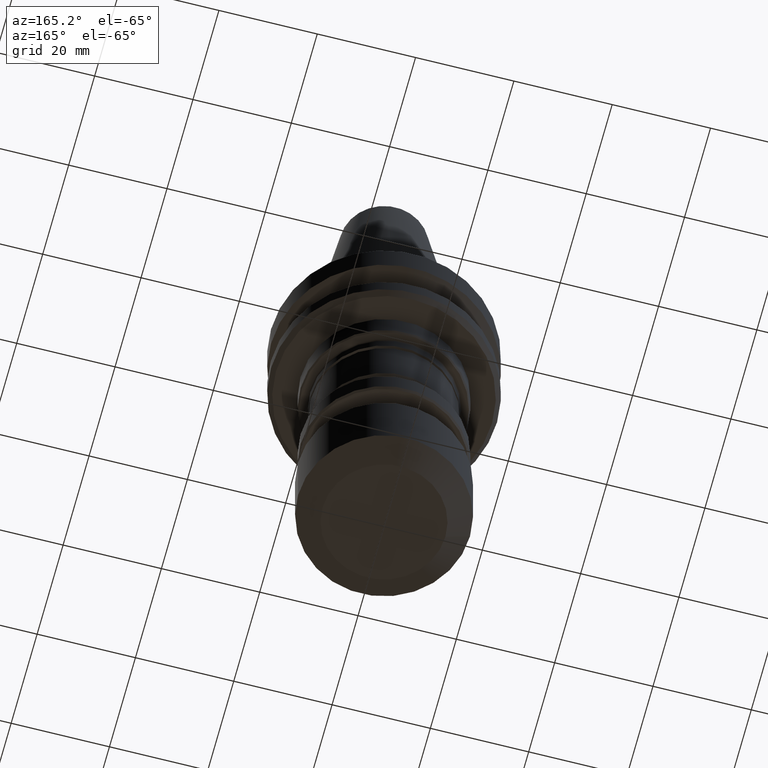
[diagram: clean part render]
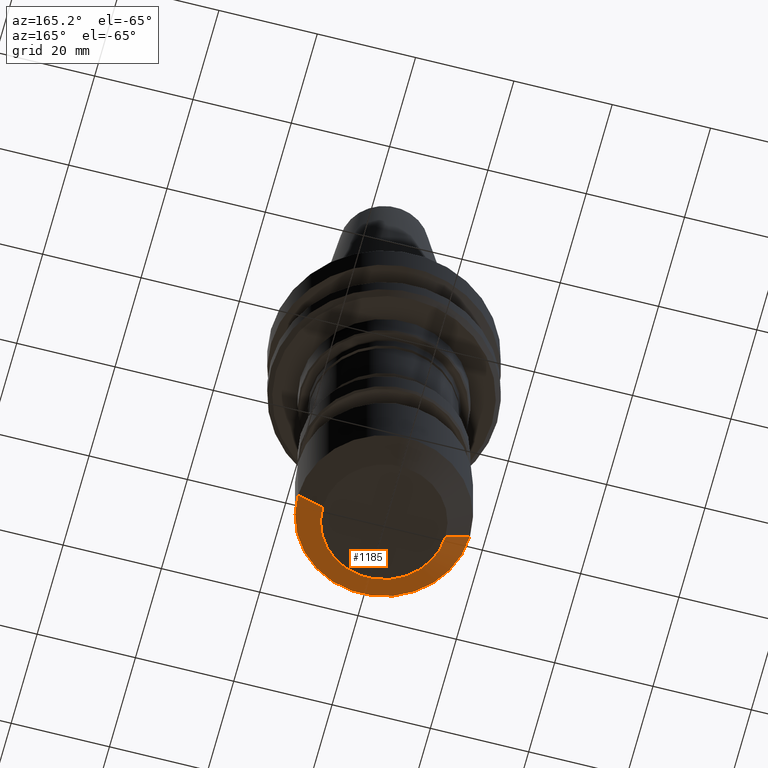
[diagram: same view with one face highlighted and labeled with its STEP entity id]
A machine part, auxiliary view. The second image highlights one B-rep face of the part: STEP entity #1185.
In plain terms, the highlighted conical surface has half-angle 60 deg.
Its self-contained STEP definition (entity closure, byte-faithful):
#9 = CARTESIAN_POINT ( 'NONE',  ( 0.0000000000000000000, 0.0000000000000000000, -80.00000000000007100 ) ) ;
#205 = FACE_OUTER_BOUND ( 'NONE', #756, .T. ) ;
#235 = LINE ( 'NONE', #1215, #1213 ) ;
#254 = LINE ( 'NONE', #800, #633 ) ;
#260 = EDGE_CURVE ( 'NONE', #533, #1818, #1835, .T. ) ;
#344 = CARTESIAN_POINT ( 'NONE',  ( 0.0000000000000000000, 0.0000000000000000000, -77.11324865405177300 ) ) ;
#375 = EDGE_CURVE ( 'NONE', #2107, #996, #1267, .T. ) ;
#533 = VERTEX_POINT ( 'NONE', #899 ) ;
#590 = CARTESIAN_POINT ( 'NONE',  ( -17.49999999999851500, 2.143131898507686400E-015, -77.11324865405177300 ) ) ;
#633 = VECTOR ( 'NONE', #953, 1000.000000000000000 ) ;
#659 = DIRECTION ( 'NONE',  ( -0.0000000000000000000, -0.0000000000000000000, 1.000000000000000000 ) ) ;
#661 = DIRECTION ( 'NONE',  ( -0.0000000000000000000, -0.0000000000000000000, 1.000000000000000000 ) ) ;
#710 = DIRECTION ( 'NONE',  ( 1.000000000000000000, 0.0000000000000000000, 0.0000000000000000000 ) ) ;
#728 = DIRECTION ( 'NONE',  ( 1.000000000000000000, 0.0000000000000000000, 0.0000000000000000000 ) ) ;
#756 = EDGE_LOOP ( 'NONE', ( #1763, #1297, #1339, #1413 ) ) ;
#800 = CARTESIAN_POINT ( 'NONE',  ( 17.49999999999851500, 0.0000000000000000000, -77.11324865405177300 ) ) ;
#899 = CARTESIAN_POINT ( 'NONE',  ( -12.49999999999829100, 1.836970198720834300E-015, -80.00000000000007100 ) ) ;
#953 = DIRECTION ( 'NONE',  ( 0.8660254037844363800, 0.0000000000000000000, 0.5000000000000041100 ) ) ;
#994 = AXIS2_PLACEMENT_3D ( 'NONE', #1504, #661, #728 ) ;
#996 = VERTEX_POINT ( 'NONE', #1254 ) ;
#1185 = ADVANCED_FACE ( 'NONE', ( #205 ), #1946, .T. ) ;
#1213 = VECTOR ( 'NONE', #1912, 1000.000000000000000 ) ;
#1215 = CARTESIAN_POINT ( 'NONE',  ( -17.49999999999851500, 2.143131898507686400E-015, -77.11324865405177300 ) ) ;
#1237 = AXIS2_PLACEMENT_3D ( 'NONE', #9, #659, #1700 ) ;
#1254 = CARTESIAN_POINT ( 'NONE',  ( 17.49999999999851500, 0.0000000000000000000, -77.11324865405177300 ) ) ;
#1267 = CIRCLE ( 'NONE', #994, 17.49999999999851500 ) ;
#1297 = ORIENTED_EDGE ( 'NONE', *, *, #260, .T. ) ;
#1339 = ORIENTED_EDGE ( 'NONE', *, *, #1942, .T. ) ;
#1402 = EDGE_CURVE ( 'NONE', #533, #2107, #235, .T. ) ;
#1413 = ORIENTED_EDGE ( 'NONE', *, *, #375, .F. ) ;
#1453 = DIRECTION ( 'NONE',  ( -0.0000000000000000000, -0.0000000000000000000, 1.000000000000000000 ) ) ;
#1504 = CARTESIAN_POINT ( 'NONE',  ( 0.0000000000000000000, 0.0000000000000000000, -77.11324865405177300 ) ) ;
#1557 = CARTESIAN_POINT ( 'NONE',  ( 12.49999999999829100, 0.0000000000000000000, -80.00000000000007100 ) ) ;
#1700 = DIRECTION ( 'NONE',  ( 1.000000000000000000, 0.0000000000000000000, 0.0000000000000000000 ) ) ;
#1763 = ORIENTED_EDGE ( 'NONE', *, *, #1402, .F. ) ;
#1818 = VERTEX_POINT ( 'NONE', #1557 ) ;
#1835 = CIRCLE ( 'NONE', #1237, 12.49999999999829100 ) ;
#1876 = AXIS2_PLACEMENT_3D ( 'NONE', #344, #1453, #710 ) ;
#1912 = DIRECTION ( 'NONE',  ( -0.8660254037844363800, 1.060575238724904000E-016, 0.5000000000000041100 ) ) ;
#1942 = EDGE_CURVE ( 'NONE', #1818, #996, #254, .T. ) ;
#1946 = CONICAL_SURFACE ( 'NONE', #1876, 17.49999999999851500, 1.047197551196593000 ) ;
#2107 = VERTEX_POINT ( 'NONE', #590 ) ;